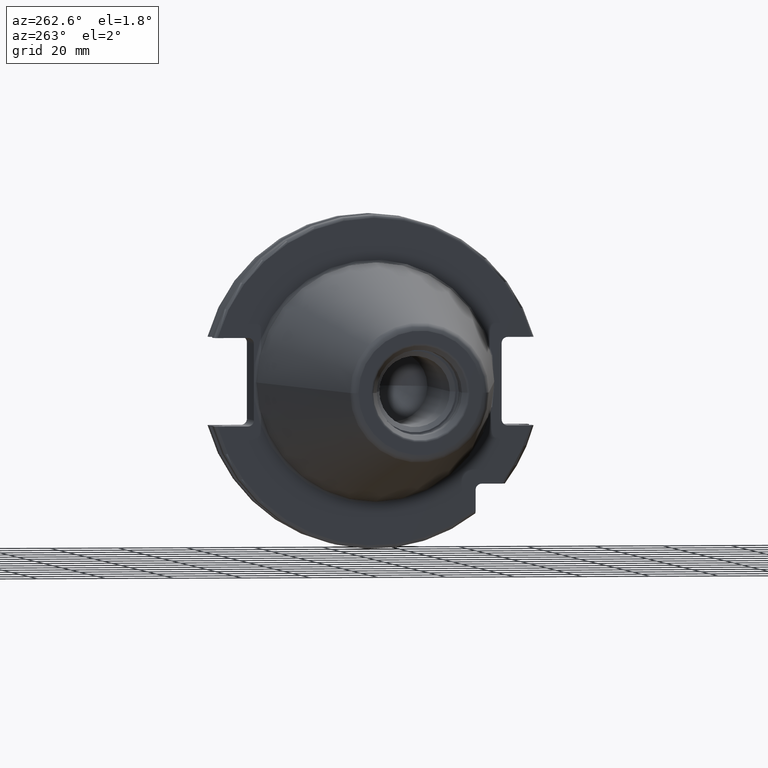
[diagram: clean part render]
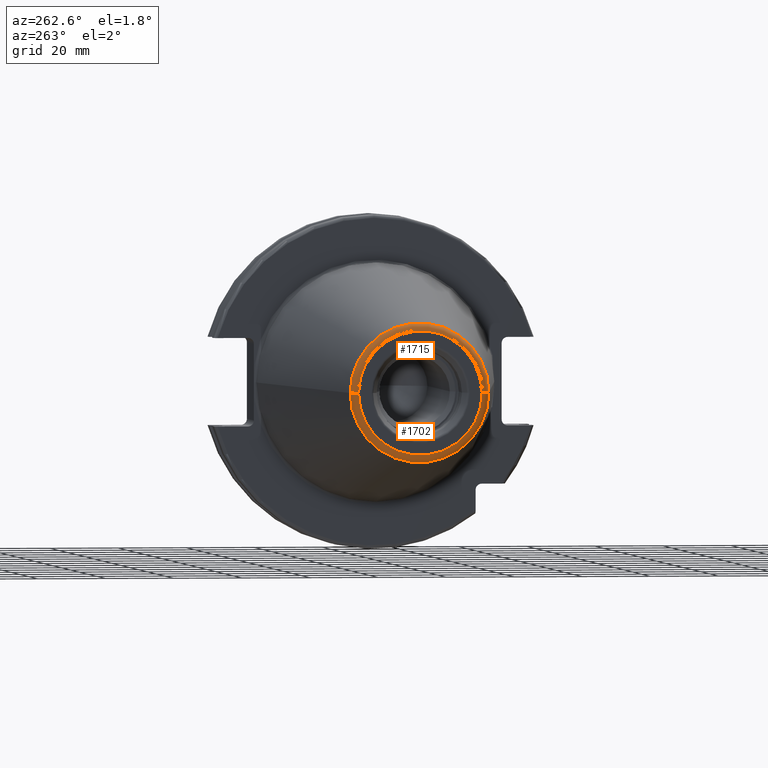
[diagram: same view with one multi-face feature highlighted, each face labeled with its STEP entity id]
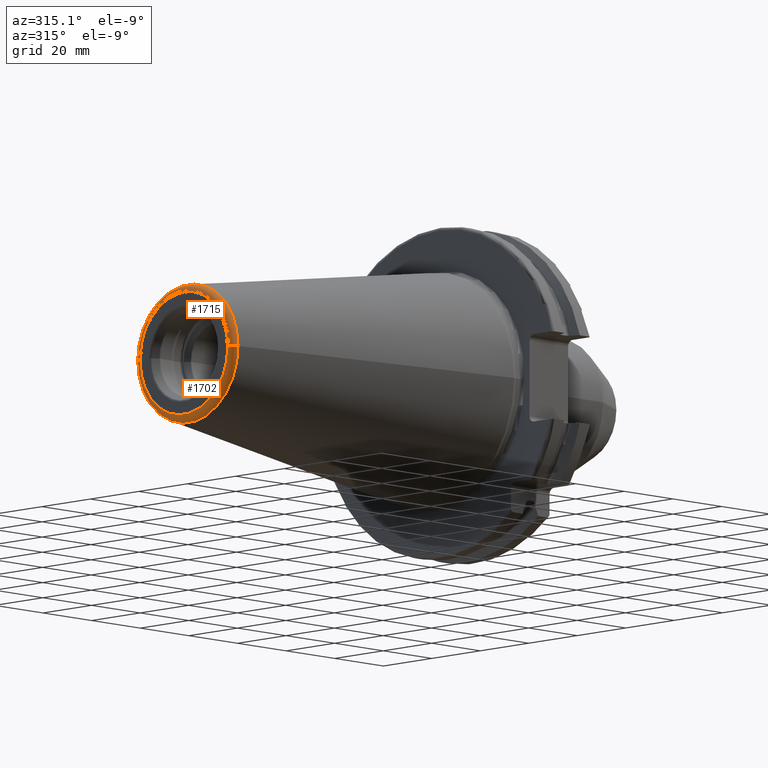
[diagram: same view with one multi-face feature highlighted, each face labeled with its STEP entity id]
A machine part, auxiliary view. The highlighted faces form ONE feature: a constant-radius fillet chain: 2 tangent blend faces with common blend radius 2.25 mm. The faces share edges in the B-rep.
A second angle (auxiliary view) of the same feature is appended — it is thin or edge-on in the first view.
Their STEP definitions:
[1] entity #1702 (Torus):
#2=CARTESIAN_POINT('',(-1.016E2,0.E0,0.E0));
#3=DIRECTION('',(-1.E0,0.E0,0.E0));
#4=DIRECTION('',(0.E0,1.E0,0.E0));
#5=AXIS2_PLACEMENT_3D('',#2,#3,#4);
#22=CARTESIAN_POINT('',(-9.935E1,1.816144700117E1,0.E0));
#23=DIRECTION('',(0.E0,0.E0,1.E0));
#24=DIRECTION('',(-1.443186691705E-1,9.895312636440E-1,0.E0));
#25=AXIS2_PLACEMENT_3D('',#22,#23,#24);
#27=CARTESIAN_POINT('',(-9.935E1,-1.816144700117E1,0.E0));
#28=DIRECTION('',(0.E0,0.E0,-1.E0));
#29=DIRECTION('',(-1.443186691705E-1,-9.895312636440E-1,0.E0));
#30=AXIS2_PLACEMENT_3D('',#27,#28,#29);
#32=CARTESIAN_POINT('',(-9.967471700563E1,0.E0,0.E0));
#33=DIRECTION('',(-1.E0,0.E0,0.E0));
#34=DIRECTION('',(0.E0,1.E0,0.E0));
#35=AXIS2_PLACEMENT_3D('',#32,#33,#34);
#1398=CARTESIAN_POINT('',(-9.967471700563E1,2.038789234437E1,0.E0));
#1399=CARTESIAN_POINT('',(-1.016E2,1.816144700117E1,0.E0));
#1400=VERTEX_POINT('',#1398);
#1401=VERTEX_POINT('',#1399);
#1402=CARTESIAN_POINT('',(-9.967471700563E1,-2.038789234437E1,0.E0));
#1403=CARTESIAN_POINT('',(-1.016E2,-1.816144700117E1,0.E0));
#1404=VERTEX_POINT('',#1402);
#1405=VERTEX_POINT('',#1403);
#1688=CARTESIAN_POINT('',(-9.935E1,0.E0,0.E0));
#1689=DIRECTION('',(1.E0,0.E0,0.E0));
#1690=DIRECTION('',(0.E0,-1.E0,0.E0));
#1691=AXIS2_PLACEMENT_3D('',#1688,#1689,#1690);
#1692=TOROIDAL_SURFACE('',#1691,1.816144700117E1,2.25E0);
#1694=ORIENTED_EDGE('',*,*,#1693,.T.);
#1695=ORIENTED_EDGE('',*,*,#1675,.T.);
#1697=ORIENTED_EDGE('',*,*,#1696,.F.);
#1699=ORIENTED_EDGE('',*,*,#1698,.F.);
#1700=EDGE_LOOP('',(#1694,#1695,#1697,#1699));
#1701=FACE_OUTER_BOUND('',#1700,.F.);
#1702=ADVANCED_FACE('',(#1701),#1692,.T.);
#6=CIRCLE('',#5,1.816144700117E1);
#26=CIRCLE('',#25,2.25E0);
#31=CIRCLE('',#30,2.25E0);
#36=CIRCLE('',#35,2.038789234437E1);
#1675=EDGE_CURVE('',#1401,#1405,#6,.T.);
#1693=EDGE_CURVE('',#1400,#1401,#26,.T.);
#1696=EDGE_CURVE('',#1404,#1405,#31,.T.);
#1698=EDGE_CURVE('',#1400,#1404,#36,.T.);
[2] entity #1715 (Torus):
#7=CARTESIAN_POINT('',(-1.016E2,0.E0,0.E0));
#8=DIRECTION('',(1.E0,0.E0,0.E0));
#9=DIRECTION('',(0.E0,1.E0,0.E0));
#10=AXIS2_PLACEMENT_3D('',#7,#8,#9);
#22=CARTESIAN_POINT('',(-9.935E1,1.816144700117E1,0.E0));
#23=DIRECTION('',(0.E0,0.E0,1.E0));
#24=DIRECTION('',(-1.443186691705E-1,9.895312636440E-1,0.E0));
#25=AXIS2_PLACEMENT_3D('',#22,#23,#24);
#27=CARTESIAN_POINT('',(-9.935E1,-1.816144700117E1,0.E0));
#28=DIRECTION('',(0.E0,0.E0,-1.E0));
#29=DIRECTION('',(-1.443186691705E-1,-9.895312636440E-1,0.E0));
#30=AXIS2_PLACEMENT_3D('',#27,#28,#29);
#37=CARTESIAN_POINT('',(-9.967471700563E1,0.E0,0.E0));
#38=DIRECTION('',(1.E0,0.E0,0.E0));
#39=DIRECTION('',(0.E0,1.E0,0.E0));
#40=AXIS2_PLACEMENT_3D('',#37,#38,#39);
#1398=CARTESIAN_POINT('',(-9.967471700563E1,2.038789234437E1,0.E0));
#1399=CARTESIAN_POINT('',(-1.016E2,1.816144700117E1,0.E0));
#1400=VERTEX_POINT('',#1398);
#1401=VERTEX_POINT('',#1399);
#1402=CARTESIAN_POINT('',(-9.967471700563E1,-2.038789234437E1,0.E0));
#1403=CARTESIAN_POINT('',(-1.016E2,-1.816144700117E1,0.E0));
#1404=VERTEX_POINT('',#1402);
#1405=VERTEX_POINT('',#1403);
#1703=CARTESIAN_POINT('',(-9.935E1,0.E0,0.E0));
#1704=DIRECTION('',(1.E0,0.E0,0.E0));
#1705=DIRECTION('',(0.E0,-1.E0,0.E0));
#1706=AXIS2_PLACEMENT_3D('',#1703,#1704,#1705);
#1707=TOROIDAL_SURFACE('',#1706,1.816144700117E1,2.25E0);
#1708=ORIENTED_EDGE('',*,*,#1693,.F.);
#1710=ORIENTED_EDGE('',*,*,#1709,.T.);
#1711=ORIENTED_EDGE('',*,*,#1696,.T.);
#1712=ORIENTED_EDGE('',*,*,#1677,.F.);
#1713=EDGE_LOOP('',(#1708,#1710,#1711,#1712));
#1714=FACE_OUTER_BOUND('',#1713,.F.);
#1715=ADVANCED_FACE('',(#1714),#1707,.T.);
#11=CIRCLE('',#10,1.816144700117E1);
#26=CIRCLE('',#25,2.25E0);
#31=CIRCLE('',#30,2.25E0);
#41=CIRCLE('',#40,2.038789234437E1);
#1677=EDGE_CURVE('',#1401,#1405,#11,.T.);
#1693=EDGE_CURVE('',#1400,#1401,#26,.T.);
#1696=EDGE_CURVE('',#1404,#1405,#31,.T.);
#1709=EDGE_CURVE('',#1400,#1404,#41,.T.);